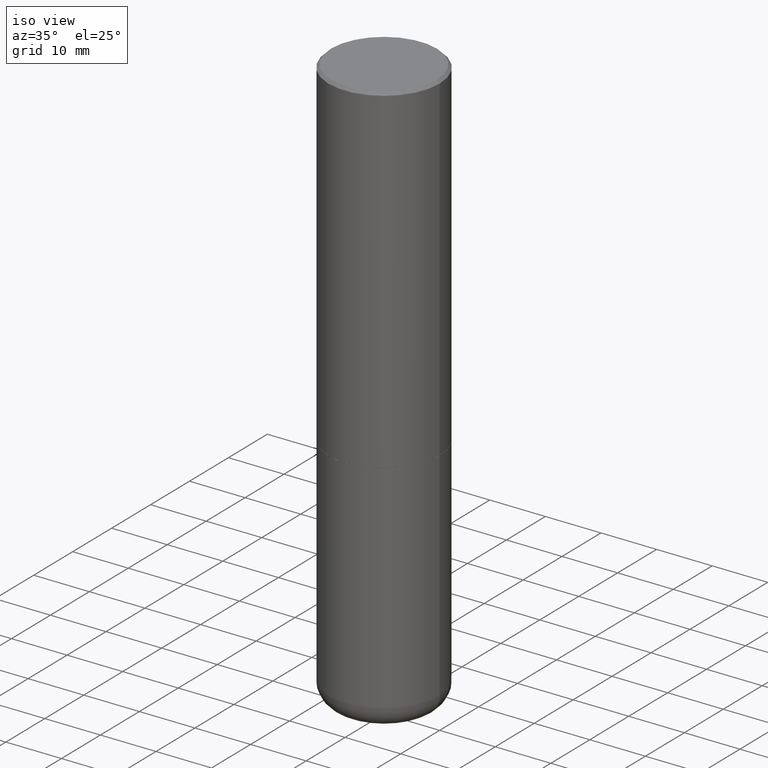
[diagram: clean part render]
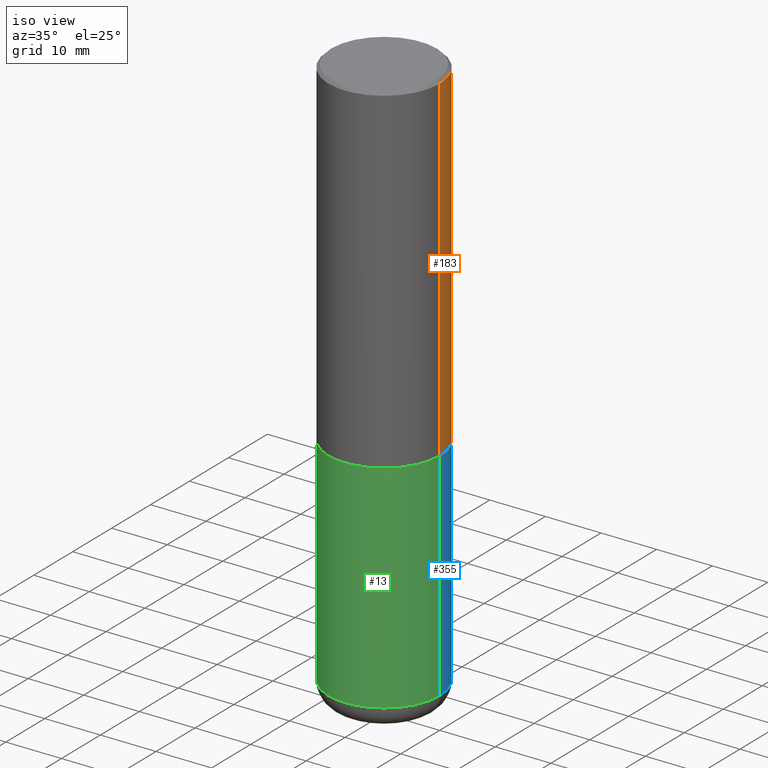
[diagram: same view with three faces highlighted in distinct colors, each labeled with its STEP entity id]
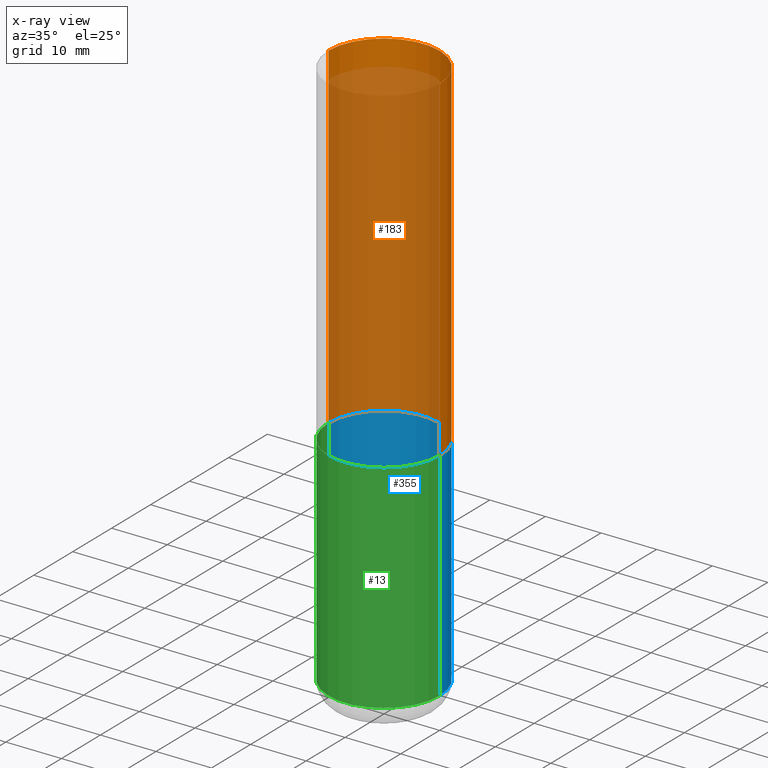
[diagram: x-ray of the same camera — body ghosted, the three highlighted faces saturated]
A machine part, iso view with three faces highlighted in distinct colors.
The next image is the same camera in x-ray (body ghosted, the three faces saturated) — at least one of them is partly hidden behind the body in this view.
Their STEP definitions:

[orange] entity #183 — the highlighted cylindrical surface (partial cylindrical patch) has radius 10 mm, axis along (-0, 0, 1).
#1 = FACE_OUTER_BOUND ( 'NONE', #147, .T. ) ;
#9 = CARTESIAN_POINT ( 'NONE',  ( -0.3937000000000003830, -1.428333113714341032E-15, -2.400600000000000289 ) ) ;
#18 = CARTESIAN_POINT ( 'NONE',  ( -0.3937000000000001609, 2.797406750687515575E-15, -1.936584745033357296E-29 ) ) ;
#20 = EDGE_CURVE ( 'NONE', #28, #177, #35, .T. ) ;
#28 = VERTEX_POINT ( 'NONE', #96 ) ;
#35 = LINE ( 'NONE', #127, #230 ) ;
#50 = ORIENTED_EDGE ( 'NONE', *, *, #20, .F. ) ;
#59 = AXIS2_PLACEMENT_3D ( 'NONE', #344, #78, #95 ) ;
#78 = DIRECTION ( 'NONE',  ( -2.445468806185136597E-29, 3.491481338843145583E-15, 1.000000000000000000 ) ) ;
#90 = CARTESIAN_POINT ( 'NONE',  ( 0.3937000000000000499, -2.770807688499515734E-15, -0.02000000000000008715 ) ) ;
#95 = DIRECTION ( 'NONE',  ( 1.000000000000000000, -6.982962677686265922E-15, 0.000000000000000000 ) ) ;
#96 = CARTESIAN_POINT ( 'NONE',  ( 0.3937000000000002720, -1.113084250823194063E-14, -2.400600000000000289 ) ) ;
#98 = EDGE_CURVE ( 'NONE', #177, #116, #287, .T. ) ;
#116 = VERTEX_POINT ( 'NONE', #307 ) ;
#123 = CYLINDRICAL_SURFACE ( 'NONE', #408, 0.3937000000000001609 ) ;
#125 = CIRCLE ( 'NONE', #59, 0.3937000000000002720 ) ;
#127 = CARTESIAN_POINT ( 'NONE',  ( 0.3937000000000001609, -2.749192406205084400E-15, 1.919750796630860732E-29 ) ) ;
#130 = ORIENTED_EDGE ( 'NONE', *, *, #169, .T. ) ;
#147 = EDGE_LOOP ( 'NONE', ( #184, #130, #203, #50 ) ) ;
#169 = EDGE_CURVE ( 'NONE', #322, #116, #173, .T. ) ;
#173 = LINE ( 'NONE', #18, #388 ) ;
#177 = VERTEX_POINT ( 'NONE', #90 ) ;
#181 = DIRECTION ( 'NONE',  ( -2.445468806185136877E-29, 3.491481338843145188E-15, 1.000000000000000000 ) ) ;
#183 = ADVANCED_FACE ( 'NONE', ( #1 ), #123, .T. ) ;
#184 = ORIENTED_EDGE ( 'NONE', *, *, #368, .T. ) ;
#185 = DIRECTION ( 'NONE',  ( 1.000000000000000000, -6.982962677686266711E-15, 4.876176775795935793E-29 ) ) ;
#203 = ORIENTED_EDGE ( 'NONE', *, *, #98, .F. ) ;
#230 = VECTOR ( 'NONE', #390, 39.37007874015748143 ) ;
#231 = AXIS2_PLACEMENT_3D ( 'NONE', #293, #304, #241 ) ;
#241 = DIRECTION ( 'NONE',  ( 1.000000000000000000, -6.982962677686265922E-15, 0.000000000000000000 ) ) ;
#253 = CARTESIAN_POINT ( 'NONE',  ( 0.000000000000000000, 0.000000000000000000, 0.000000000000000000 ) ) ;
#287 = CIRCLE ( 'NONE', #231, 0.3937000000000000499 ) ;
#293 = CARTESIAN_POINT ( 'NONE',  ( 4.890937612370294178E-31, -6.982962677686321191E-17, -0.02000000000000008715 ) ) ;
#304 = DIRECTION ( 'NONE',  ( -2.445468806185136597E-29, 3.491481338843145583E-15, 1.000000000000000000 ) ) ;
#307 = CARTESIAN_POINT ( 'NONE',  ( -0.3937000000000000499, 2.679362779428219918E-15, -0.02000000000000008715 ) ) ;
#316 = DIRECTION ( 'NONE',  ( -2.445468806185136597E-29, 3.491481338843145583E-15, 1.000000000000000000 ) ) ;
#322 = VERTEX_POINT ( 'NONE', #9 ) ;
#344 = CARTESIAN_POINT ( 'NONE',  ( 5.870592416128038746E-29, -8.381650102026855834E-15, -2.400600000000000289 ) ) ;
#368 = EDGE_CURVE ( 'NONE', #28, #322, #125, .T. ) ;
#388 = VECTOR ( 'NONE', #181, 39.37007874015748143 ) ;
#390 = DIRECTION ( 'NONE',  ( -2.445468806185136877E-29, 3.491481338843145188E-15, 1.000000000000000000 ) ) ;
#408 = AXIS2_PLACEMENT_3D ( 'NONE', #253, #316, #185 ) ;

[blue] entity #355 — the highlighted cylindrical surface (partial cylindrical patch) has radius 10 mm, axis along (-0, 0, 1).
#11 = VERTEX_POINT ( 'NONE', #227 ) ;
#14 = CARTESIAN_POINT ( 'NONE',  ( 0.000000000000000000, 0.000000000000000000, 0.000000000000000000 ) ) ;
#15 = AXIS2_PLACEMENT_3D ( 'NONE', #347, #60, #380 ) ;
#42 = EDGE_CURVE ( 'NONE', #311, #242, #193, .T. ) ;
#60 = DIRECTION ( 'NONE',  ( -2.445468806185136597E-29, 3.491481338843145583E-15, 1.000000000000000000 ) ) ;
#89 = ORIENTED_EDGE ( 'NONE', *, *, #265, .T. ) ;
#100 = CIRCLE ( 'NONE', #170, 0.3937000000000000499 ) ;
#114 = LINE ( 'NONE', #240, #204 ) ;
#115 = EDGE_CURVE ( 'NONE', #242, #11, #100, .T. ) ;
#117 = CARTESIAN_POINT ( 'NONE',  ( -0.3936999999999999389, -1.094855528033794942E-14, -3.937000000000000277 ) ) ;
#131 = EDGE_CURVE ( 'NONE', #248, #11, #114, .T. ) ;
#160 = DIRECTION ( 'NONE',  ( -2.445468806185136877E-29, 3.491481338843145188E-15, 1.000000000000000000 ) ) ;
#161 = ORIENTED_EDGE ( 'NONE', *, *, #131, .T. ) ;
#165 = CARTESIAN_POINT ( 'NONE',  ( 0.3936999999999999389, -1.649515443723054663E-14, -3.937000000000000277 ) ) ;
#170 = AXIS2_PLACEMENT_3D ( 'NONE', #372, #374, #268 ) ;
#182 = FACE_OUTER_BOUND ( 'NONE', #298, .T. ) ;
#193 = LINE ( 'NONE', #351, #237 ) ;
#204 = VECTOR ( 'NONE', #406, 39.37007874015748143 ) ;
#216 = AXIS2_PLACEMENT_3D ( 'NONE', #14, #410, #373 ) ;
#217 = ORIENTED_EDGE ( 'NONE', *, *, #42, .F. ) ;
#227 = CARTESIAN_POINT ( 'NONE',  ( -0.3937000000000000499, -8.268145056508066341E-15, -2.401600000000000179 ) ) ;
#237 = VECTOR ( 'NONE', #160, 39.37007874015748143 ) ;
#240 = CARTESIAN_POINT ( 'NONE',  ( -0.3937000000000000499, 2.797406750687514786E-15, -1.936584745033356735E-29 ) ) ;
#242 = VERTEX_POINT ( 'NONE', #412 ) ;
#248 = VERTEX_POINT ( 'NONE', #117 ) ;
#265 = EDGE_CURVE ( 'NONE', #311, #248, #288, .T. ) ;
#268 = DIRECTION ( 'NONE',  ( 1.000000000000000000, -6.982962677686265133E-15, 0.000000000000000000 ) ) ;
#288 = CIRCLE ( 'NONE', #15, 0.3937000000000000499 ) ;
#290 = ORIENTED_EDGE ( 'NONE', *, *, #115, .F. ) ;
#298 = EDGE_LOOP ( 'NONE', ( #89, #161, #290, #217 ) ) ;
#311 = VERTEX_POINT ( 'NONE', #165 ) ;
#336 = CYLINDRICAL_SURFACE ( 'NONE', #216, 0.3937000000000000499 ) ;
#347 = CARTESIAN_POINT ( 'NONE',  ( 9.627810689950883669E-29, -1.374596203102546341E-14, -3.937000000000000277 ) ) ;
#351 = CARTESIAN_POINT ( 'NONE',  ( 0.3937000000000000499, -2.749192406205083217E-15, 1.919750796630860172E-29 ) ) ;
#355 = ADVANCED_FACE ( 'NONE', ( #182 ), #336, .T. ) ;
#372 = CARTESIAN_POINT ( 'NONE',  ( 5.873037884934224349E-29, -8.385141583365698841E-15, -2.401600000000000179 ) ) ;
#373 = DIRECTION ( 'NONE',  ( 1.000000000000000000, -6.982962677686265922E-15, 4.876176775795935793E-29 ) ) ;
#374 = DIRECTION ( 'NONE',  ( -2.445468806185136597E-29, 3.491481338843145583E-15, 1.000000000000000000 ) ) ;
#380 = DIRECTION ( 'NONE',  ( 1.000000000000000000, -6.982962677686267499E-15, 0.000000000000000000 ) ) ;
#406 = DIRECTION ( 'NONE',  ( -2.445468806185136877E-29, 3.491481338843145188E-15, 1.000000000000000000 ) ) ;
#410 = DIRECTION ( 'NONE',  ( -2.445468806185136597E-29, 3.491481338843145583E-15, 1.000000000000000000 ) ) ;
#412 = CARTESIAN_POINT ( 'NONE',  ( 0.3937000000000000499, -1.113433398957078206E-14, -2.401600000000000179 ) ) ;

[green] entity #13 — the highlighted cylindrical surface (partial cylindrical patch) has radius 10 mm, axis along (-0, 0, 1).
#10 = AXIS2_PLACEMENT_3D ( 'NONE', #278, #417, #255 ) ;
#11 = VERTEX_POINT ( 'NONE', #227 ) ;
#13 = ADVANCED_FACE ( 'NONE', ( #350 ), #62, .T. ) ;
#42 = EDGE_CURVE ( 'NONE', #311, #242, #193, .T. ) ;
#46 = CARTESIAN_POINT ( 'NONE',  ( 9.627810689950883669E-29, -1.374596203102546341E-14, -3.937000000000000277 ) ) ;
#62 = CYLINDRICAL_SURFACE ( 'NONE', #10, 0.3937000000000000499 ) ;
#73 = EDGE_CURVE ( 'NONE', #248, #311, #141, .T. ) ;
#84 = ORIENTED_EDGE ( 'NONE', *, *, #73, .T. ) ;
#101 = CARTESIAN_POINT ( 'NONE',  ( 5.873037884934224349E-29, -8.385141583365698841E-15, -2.401600000000000179 ) ) ;
#109 = DIRECTION ( 'NONE',  ( -2.445468806185136597E-29, 3.491481338843145583E-15, 1.000000000000000000 ) ) ;
#114 = LINE ( 'NONE', #240, #204 ) ;
#117 = CARTESIAN_POINT ( 'NONE',  ( -0.3936999999999999389, -1.094855528033794942E-14, -3.937000000000000277 ) ) ;
#131 = EDGE_CURVE ( 'NONE', #248, #11, #114, .T. ) ;
#141 = CIRCLE ( 'NONE', #157, 0.3937000000000000499 ) ;
#143 = AXIS2_PLACEMENT_3D ( 'NONE', #101, #200, #325 ) ;
#157 = AXIS2_PLACEMENT_3D ( 'NONE', #46, #109, #334 ) ;
#160 = DIRECTION ( 'NONE',  ( -2.445468806185136877E-29, 3.491481338843145188E-15, 1.000000000000000000 ) ) ;
#165 = CARTESIAN_POINT ( 'NONE',  ( 0.3936999999999999389, -1.649515443723054663E-14, -3.937000000000000277 ) ) ;
#190 = ORIENTED_EDGE ( 'NONE', *, *, #321, .F. ) ;
#193 = LINE ( 'NONE', #351, #237 ) ;
#200 = DIRECTION ( 'NONE',  ( -2.445468806185136597E-29, 3.491481338843145583E-15, 1.000000000000000000 ) ) ;
#204 = VECTOR ( 'NONE', #406, 39.37007874015748143 ) ;
#224 = ORIENTED_EDGE ( 'NONE', *, *, #42, .T. ) ;
#227 = CARTESIAN_POINT ( 'NONE',  ( -0.3937000000000000499, -8.268145056508066341E-15, -2.401600000000000179 ) ) ;
#237 = VECTOR ( 'NONE', #160, 39.37007874015748143 ) ;
#240 = CARTESIAN_POINT ( 'NONE',  ( -0.3937000000000000499, 2.797406750687514786E-15, -1.936584745033356735E-29 ) ) ;
#242 = VERTEX_POINT ( 'NONE', #412 ) ;
#248 = VERTEX_POINT ( 'NONE', #117 ) ;
#255 = DIRECTION ( 'NONE',  ( 1.000000000000000000, -6.982962677686265922E-15, 4.876176775795935793E-29 ) ) ;
#278 = CARTESIAN_POINT ( 'NONE',  ( 0.000000000000000000, 0.000000000000000000, 0.000000000000000000 ) ) ;
#310 = CIRCLE ( 'NONE', #143, 0.3937000000000000499 ) ;
#311 = VERTEX_POINT ( 'NONE', #165 ) ;
#321 = EDGE_CURVE ( 'NONE', #11, #242, #310, .T. ) ;
#325 = DIRECTION ( 'NONE',  ( 1.000000000000000000, -6.982962677686265133E-15, 0.000000000000000000 ) ) ;
#334 = DIRECTION ( 'NONE',  ( 1.000000000000000000, -6.982962677686267499E-15, 0.000000000000000000 ) ) ;
#341 = ORIENTED_EDGE ( 'NONE', *, *, #131, .F. ) ;
#350 = FACE_OUTER_BOUND ( 'NONE', #377, .T. ) ;
#351 = CARTESIAN_POINT ( 'NONE',  ( 0.3937000000000000499, -2.749192406205083217E-15, 1.919750796630860172E-29 ) ) ;
#377 = EDGE_LOOP ( 'NONE', ( #341, #84, #224, #190 ) ) ;
#406 = DIRECTION ( 'NONE',  ( -2.445468806185136877E-29, 3.491481338843145188E-15, 1.000000000000000000 ) ) ;
#412 = CARTESIAN_POINT ( 'NONE',  ( 0.3937000000000000499, -1.113433398957078206E-14, -2.401600000000000179 ) ) ;
#417 = DIRECTION ( 'NONE',  ( -2.445468806185136597E-29, 3.491481338843145583E-15, 1.000000000000000000 ) ) ;